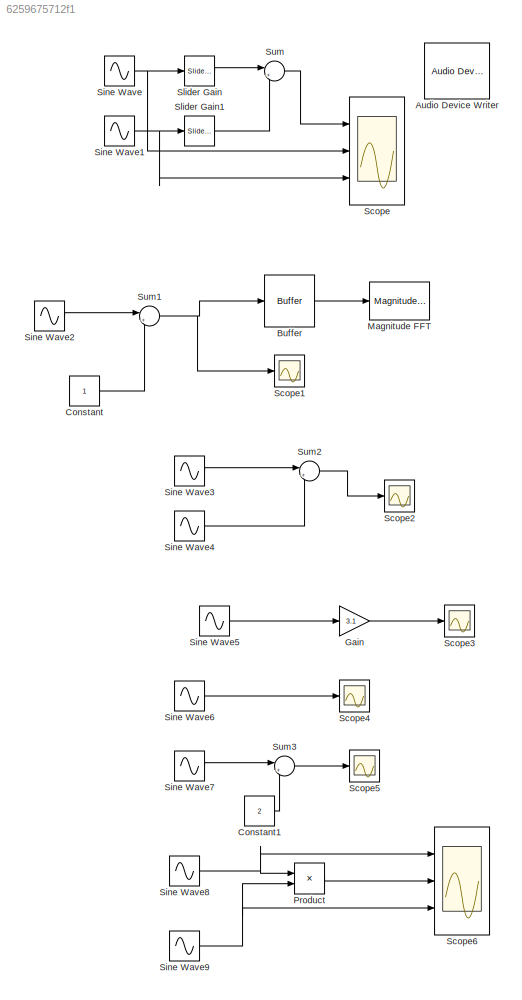
MODEL slx_6259675712f1
KIND model
CONFIG AbsTol = auto
CONFIG EnableMultiTasking = off
CONFIG FixedStep = auto
CONFIG MaxStep = auto
CONFIG MinStep = auto
CONFIG RelTol = 1e-3
CONFIG SampleTimeConstraint = Unconstrained
CONFIG Solver = VariableStepAuto
CONFIG SolverName = VariableStepAuto
CONFIG StartTime = 0.0
CONFIG StopTime = 1
BLOCK [Reference] Audio Device Writer  REF=dspsnks4/Audio Device
Writer
  Ports = [1]
  SourceBlock = dspsnks4/Audio Device\nWriter
  SourceProductBaseCode = DS
  SourceProductName = DSP System Toolbox
  SourceType = Audio Device Writer
BLOCK [Buffer] Buffer
  N = 256
  OutputFrames = off
BLOCK [Constant] Constant
BLOCK [Constant] Constant1
  Value = 2
BLOCK [Gain] Gain
  Gain = 3.1
  OutDataTypeStr = Inherit: Inherit via internal rule
  ParamDataTypeStr = Inherit: Inherit via internal rule
  SaturateOnIntegerOverflow = off
BLOCK [Reference] Magnitude FFT  REF=dspspect3/Magnitude
FFT
  Ports = [1, 1]
  SourceBlock = dspspect3/Magnitude\nFFT
  SourceProductBaseCode = DS
  SourceProductName = DSP System Toolbox
  SourceType = Magnitude FFT
BLOCK [Product] Product
  InputSameDT = off
  OutDataTypeStr = Inherit: Inherit via internal rule
  Ports = [2, 1]
  RndMeth = Floor
  SaturateOnIntegerOverflow = off
BLOCK [Scope] Scope
  Floating = off
  NumInputPorts = 3
  Ports = [3]
  ScopeSpecificationString = Simulink.scopes.TimeScopeBlockCfg('CurrentConfiguration', extmgr.ConfigurationSet(extmgr.Configuration('Core','General UI',true),extmgr.Configuration('Core','Source UI',true),extmgr.Configuration('Sources','WiredSimulink',true),extmgr.Configuration('Visuals','Time Domain',true,'SerializedDisplays',{struct('MinYLimReal','-2.56493','MaxYLimReal','2.33758','YLabelReal','','MinYLimMag','0.00000','MaxY...<+1471ch>
BLOCK [Scope] Scope1
  Floating = off
  NumInputPorts = 1
  Ports = [1]
  ScopeSpecificationString = Simulink.scopes.TimeScopeBlockCfg('CurrentConfiguration', extmgr.ConfigurationSet(extmgr.Configuration('Core','General UI',true),extmgr.Configuration('Core','Source UI',true),extmgr.Configuration('Sources','WiredSimulink',true,'DataLoggingVariableName','ScopeData1'),extmgr.Configuration('Visuals','Time Domain',true,'SerializedDisplays',{struct('MinYLimReal','-10.00000','MaxYLimReal','10.00000','YL...<+1415ch>
BLOCK [Scope] Scope2
  Floating = off
  NumInputPorts = 1
  Ports = [1]
  ScopeSpecificationString = Simulink.scopes.TimeScopeBlockCfg('CurrentConfiguration', extmgr.ConfigurationSet(extmgr.Configuration('Core','General UI',true),extmgr.Configuration('Core','Source UI',true),extmgr.Configuration('Sources','WiredSimulink',true,'DataLoggingVariableName','ScopeData1'),extmgr.Configuration('Visuals','Time Domain',true,'SerializedDisplays',{struct('MinYLimReal','-1.6238','MaxYLimReal','1.6238','YLabel...<+1458ch>
BLOCK [Scope] Scope3
  Floating = off
  NumInputPorts = 1
  Ports = [1]
  ScopeSpecificationString = Simulink.scopes.TimeScopeBlockCfg('CurrentConfiguration', extmgr.ConfigurationSet(extmgr.Configuration('Core','General UI',true),extmgr.Configuration('Core','Source UI',true),extmgr.Configuration('Sources','WiredSimulink',true,'DataLoggingVariableName','ScopeData2'),extmgr.Configuration('Visuals','Time Domain',true,'SerializedDisplays',{struct('MinYLimReal','-12.5','MaxYLimReal','12.5','YLabelReal...<+1446ch>
BLOCK [Scope] Scope4
  Floating = off
  NumInputPorts = 1
  Ports = [1]
  ScopeSpecificationString = Simulink.scopes.TimeScopeBlockCfg('CurrentConfiguration', extmgr.ConfigurationSet(extmgr.Configuration('Core','General UI',true),extmgr.Configuration('Core','Source UI',true),extmgr.Configuration('Sources','WiredSimulink',true,'DataLoggingVariableName','ScopeData3'),extmgr.Configuration('Visuals','Time Domain',true,'SerializedDisplays',{struct('MinYLimReal','-1.25','MaxYLimReal','1.25','YLabelReal...<+1452ch>
BLOCK [Scope] Scope5
  Floating = off
  NumInputPorts = 1
  Ports = [1]
  ScopeSpecificationString = Simulink.scopes.TimeScopeBlockCfg('CurrentConfiguration', extmgr.ConfigurationSet(extmgr.Configuration('Core','General UI',true),extmgr.Configuration('Core','Source UI',true),extmgr.Configuration('Sources','WiredSimulink',true,'DataLoggingVariableName','ScopeData4'),extmgr.Configuration('Visuals','Time Domain',true,'SerializedDisplays',{struct('MinYLimReal','0.75','MaxYLimReal','3.25','YLabelReal'...<+1438ch>
BLOCK [Scope] Scope6
  Floating = off
  NumInputPorts = 3
  Ports = [3]
  ScopeSpecificationString = Simulink.scopes.TimeScopeBlockCfg('CurrentConfiguration', extmgr.ConfigurationSet(extmgr.Configuration('Core','General UI',true),extmgr.Configuration('Core','Source UI',true),extmgr.Configuration('Sources','WiredSimulink',true,'DataLoggingVariableName','ScopeData5'),extmgr.Configuration('Visuals','Time Domain',true,'SerializedDisplays',{struct('MinYLimReal','-2.56493','MaxYLimReal','2.33758','YLab...<+1515ch>
BLOCK [Sin] Sine Wave
  Frequency = 1000*2*pi
  Ports = [0, 1]
  SampleTime = 1/48000
  Samples = 2*pi/(1000)
BLOCK [Sin] Sine Wave1
  Frequency = 2000*2*pi
  Ports = [0, 1]
  SampleTime = 1/48000
BLOCK [Sin] Sine Wave2
  Ports = [0, 1]
  SampleTime = 1/48000
  Samples = 48
  SineType = Sample based
BLOCK [Sin] Sine Wave3
  Frequency = 1000*2*pi
  Ports = [0, 1]
  SampleTime = 1/48000
  Samples = 2*pi/(1000)
BLOCK [Sin] Sine Wave4
  Amplitude = 1/2
  Frequency = 2000*2*pi
  Ports = [0, 1]
  SampleTime = 1/48000
  Samples = 2*pi/(1000)
BLOCK [Sin] Sine Wave5
  Frequency = 500/pi
  Ports = [0, 1]
  SampleTime = 1/48000
  Samples = 2*pi/(1000)
BLOCK [Sin] Sine Wave6
  Frequency = 1000*2*pi
  Ports = [0, 1]
  SampleTime = 1/48000
  Samples = 2*pi/(1000)
BLOCK [Sin] Sine Wave7
  Frequency = 1000*2*pi
  Ports = [0, 1]
  SampleTime = 1/48000
  Samples = 2*pi/(1000)
BLOCK [Sin] Sine Wave8
  Frequency = 500*2*pi
  Ports = [0, 1]
  SampleTime = 1/48000
  Samples = 2*pi/(1000)
BLOCK [Sin] Sine Wave9
  Frequency = 31.25*2*pi
  Ports = [0, 1]
  SampleTime = 1/48000
  Samples = 2*pi/(1000)
BLOCK [Reference] Slider Gain  REF=simulink/Math
Operations/Slider
Gain
  Ports = [1, 1]
  SourceBlock = simulink/Math\nOperations/Slider\nGain
  SourceProductBaseCode = SL
  SourceProductName = Simulink
  SourceType = Slider Gain
BLOCK [Reference] Slider Gain1  REF=simulink/Math
Operations/Slider
Gain
  Ports = [1, 1]
  SourceBlock = simulink/Math\nOperations/Slider\nGain
  SourceProductBaseCode = SL
  SourceProductName = Simulink
  SourceType = Slider Gain
BLOCK [Sum] Sum
  IconShape = round
  InputSameDT = off
  Inputs = |++
  OutDataTypeStr = Inherit: Inherit via internal rule
  Ports = [2, 1]
  SaturateOnIntegerOverflow = off
BLOCK [Sum] Sum1
  IconShape = round
  InputSameDT = off
  Inputs = |++
  OutDataTypeStr = Inherit: Inherit via internal rule
  Ports = [2, 1]
  SaturateOnIntegerOverflow = off
BLOCK [Sum] Sum2
  IconShape = round
  InputSameDT = off
  Inputs = |++
  OutDataTypeStr = Inherit: Inherit via internal rule
  Ports = [2, 1]
  SaturateOnIntegerOverflow = off
BLOCK [Sum] Sum3
  IconShape = round
  InputSameDT = off
  Inputs = |++
  OutDataTypeStr = Inherit: Inherit via internal rule
  Ports = [2, 1]
  SaturateOnIntegerOverflow = off
LINE Buffer:1 -> Magnitude FFT:1
LINE Constant1:1 -> Sum3:2
LINE Constant:1 -> Sum1:2
LINE Gain:1 -> Scope3:1
LINE Product:1 -> Scope6:2
NET Sine Wave1:1 -> Scope:3, Slider Gain1:1
LINE Sine Wave2:1 -> Sum1:1
LINE Sine Wave3:1 -> Sum2:1
LINE Sine Wave4:1 -> Sum2:2
LINE Sine Wave5:1 -> Gain:1
LINE Sine Wave6:1 -> Scope4:1
LINE Sine Wave7:1 -> Sum3:1
NET Sine Wave8:1 -> Product:1, Scope6:1
NET Sine Wave9:1 -> Product:2, Scope6:3
NET Sine Wave:1 -> Scope:2, Slider Gain:1
LINE Slider Gain1:1 -> Sum:2
LINE Slider Gain:1 -> Sum:1
NET Sum1:1 -> Buffer:1, Scope1:1
LINE Sum2:1 -> Scope2:1
LINE Sum3:1 -> Scope5:1
LINE Sum:1 -> Scope:1
note: NET lines group one-source signal fan-out (src -> all destinations, sorted); 1:1 wires keep LINE
